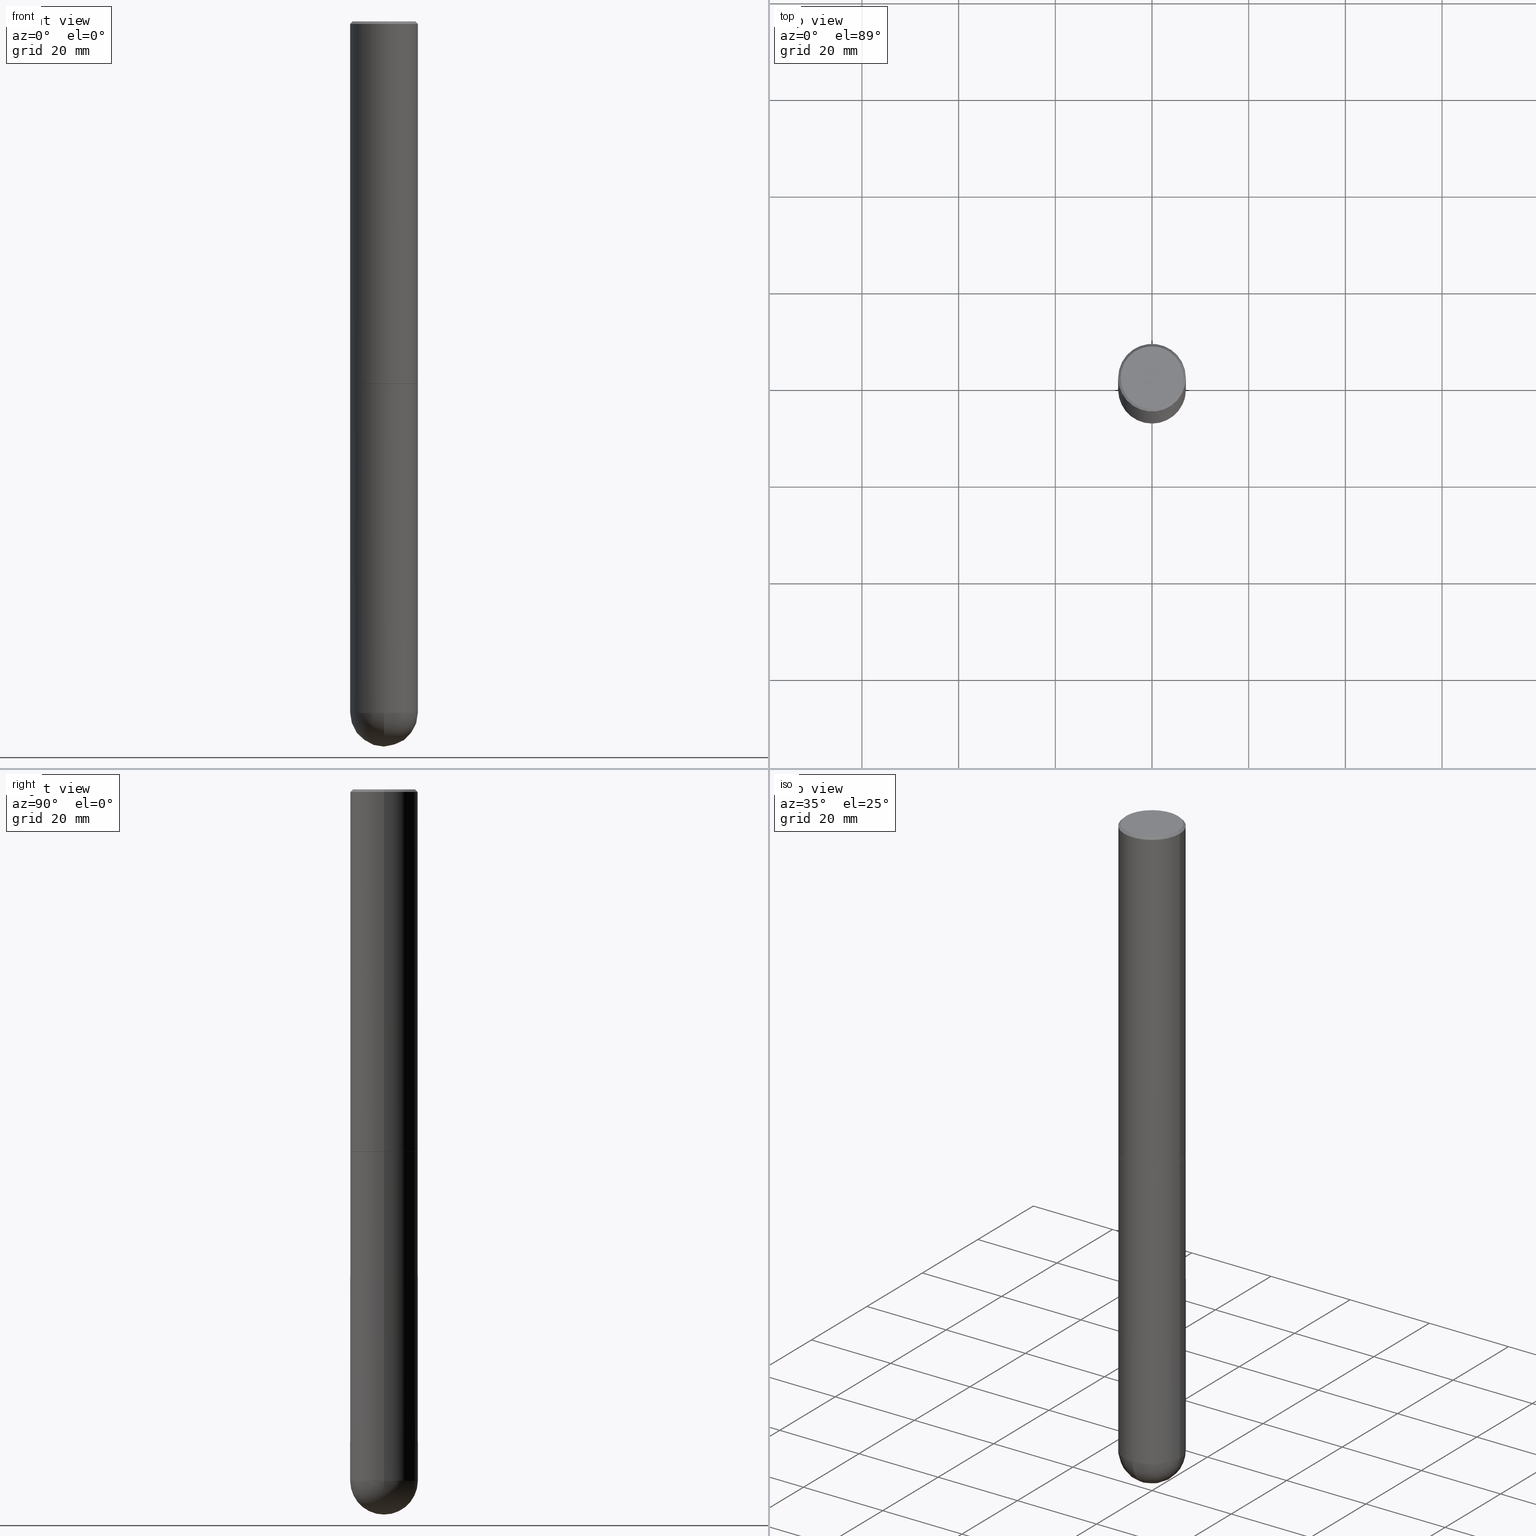
[diagram: canonical four-view strip — front | top / right | iso, engineering-drawing reading convention]
A machine part, canonical four-view strip (front | top / right | iso — engineering-drawing reading convention). The complete STEP part file that produces these views, byte-faithful:
ISO-10303-21;
HEADER;
FILE_DESCRIPTION (( 'STEP AP203' ),
    '1' );
FILE_NAME ('43556.STEP',
    '2024-04-10T11:44:17',
    ( '' ),
    ( '' ),
    'SwSTEP 2.0',
    'SolidWorks 2023',
    '' );
FILE_SCHEMA (( 'CONFIG_CONTROL_DESIGN' ));
ENDSEC;

DATA;
#1 = ORIENTED_EDGE ( 'NONE', *, *, #289, .F. ) ;
#2 = PERSON_AND_ORGANIZATION ( #265, #60 ) ;
#3 = ADVANCED_FACE ( 'NONE', ( #37 ), #167, .F. ) ;
#4 = CYLINDRICAL_SURFACE ( 'NONE', #80, 0.2756000000000002337 ) ;
#5 = CIRCLE ( 'NONE', #364, 0.2756000000000000116 ) ;
#6 = AXIS2_PLACEMENT_3D ( 'NONE', #361, #239, #143 ) ;
#7 = SPHERICAL_SURFACE ( 'NONE', #252, 0.2756000000000000671 ) ;
#8 = CARTESIAN_POINT ( 'NONE',  ( 7.218290275216666916E-29, -1.030580546786331359E-14, -2.951700000000000212 ) ) ;
#9 = FACE_OUTER_BOUND ( 'NONE', #156, .T. ) ;
#10 = CARTESIAN_POINT ( 'NONE',  ( -1.958255779754700116E-15, -0.2756000000000199956, -5.629899999999999238 ) ) ;
#11 = DIRECTION ( 'NONE',  ( -2.445468806185136597E-29, 3.491481338843145583E-15, 1.000000000000000000 ) ) ;
#12 = EDGE_CURVE ( 'NONE', #248, #194, #258, .T. ) ;
#13 = CYLINDRICAL_SURFACE ( 'NONE', #69, 0.2756000000000002337 ) ;
#14 = DIRECTION ( 'NONE',  ( -2.445468806185136597E-29, 3.491481338843145583E-15, 1.000000000000000000 ) ) ;
#15 = CARTESIAN_POINT ( 'NONE',  ( -0.2746000000000000107, -8.358146596804921801E-15, -2.952700000000000546 ) ) ;
#16 = AXIS2_PLACEMENT_3D ( 'NONE', #255, #389, #103 ) ;
#17 = DIRECTION ( 'NONE',  ( -2.445468806185136597E-29, 3.491481338843145583E-15, 1.000000000000000000 ) ) ;
#18 = DIRECTION ( 'NONE',  ( 6.982962677686265922E-15, 1.000000000000000000, -3.964946289788479319E-15 ) ) ;
#19 = CIRCLE ( 'NONE', #391, 0.2556000000000000494 ) ;
#20 = ORIENTED_EDGE ( 'NONE', *, *, #283, .F. ) ;
#21 =( NAMED_UNIT ( * ) SI_UNIT ( $, .STERADIAN. ) SOLID_ANGLE_UNIT ( ) );
#22 = DIRECTION ( 'NONE',  ( 1.000000000000000000, -6.982962677686264344E-15, 0.000000000000000000 ) ) ;
#23 = ORIENTED_EDGE ( 'NONE', *, *, #351, .T. ) ;
#24 = CALENDAR_DATE ( 2024, 10, 4 ) ;
#25 = ORIENTED_EDGE ( 'NONE', *, *, #79, .T. ) ;
#26 = PERSON_AND_ORGANIZATION_ROLE ( 'creator' ) ;
#27 = ORIENTED_EDGE ( 'NONE', *, *, #87, .T. ) ;
#28 = ADVANCED_BREP_SHAPE_REPRESENTATION ( '43556', ( #291, #305, #360 ), #135 ) ;
#29 = APPROVAL_STATUS ( 'not_yet_approved' ) ;
#30 = VERTEX_POINT ( 'NONE', #10 ) ;
#31 = VERTEX_POINT ( 'NONE', #45 ) ;
#32 = PERSON_AND_ORGANIZATION ( #265, #60 ) ;
#33 = ORIENTED_EDGE ( 'NONE', *, *, #233, .T. ) ;
#34 = CC_DESIGN_PERSON_AND_ORGANIZATION_ASSIGNMENT ( #32, #26, ( #181 ) ) ;
#35 = LINE ( 'NONE', #352, #340 ) ;
#36 = CIRCLE ( 'NONE', #394, 0.2756000000000000671 ) ;
#37 = FACE_OUTER_BOUND ( 'NONE', #66, .T. ) ;
#38 = LOCAL_TIME ( 7, 44, 17.00000000000000000, #226 ) ;
#39 = EDGE_CURVE ( 'NONE', #152, #180, #299, .T. ) ;
#40 = EDGE_CURVE ( 'NONE', #126, #248, #85, .T. ) ;
#41 = CARTESIAN_POINT ( 'NONE',  ( 1.412238044847732931E-28, -2.107624978178599697E-14, -5.905499999999999972 ) ) ;
#42 = DIRECTION ( 'NONE',  ( -2.445468806185136597E-29, 3.491481338843145583E-15, 1.000000000000000000 ) ) ;
#43 = DIRECTION ( 'NONE',  ( 6.982962677686267499E-15, 1.000000000000000000, 0.000000000000000000 ) ) ;
#44 = ORIENTED_EDGE ( 'NONE', *, *, #283, .T. ) ;
#45 = CARTESIAN_POINT ( 'NONE',  ( -0.2756000000000000116, 1.854674887193472050E-15, -0.02000000000000006287 ) ) ;
#46 = FACE_OUTER_BOUND ( 'NONE', #346, .T. ) ;
#47 = ORIENTED_EDGE ( 'NONE', *, *, #393, .F. ) ;
#48 = AXIS2_PLACEMENT_3D ( 'NONE', #185, #311, #22 ) ;
#49 = FACE_OUTER_BOUND ( 'NONE', #240, .T. ) ;
#50 = AXIS2_PLACEMENT_3D ( 'NONE', #8, #133, #256 ) ;
#51 = DIRECTION ( 'NONE',  ( 1.000000000000000000, -6.982962677686262766E-15, 0.000000000000000000 ) ) ;
#52 = CARTESIAN_POINT ( 'NONE',  ( 0.2756000000000004557, -1.223030998183365327E-14, -2.951700000000000212 ) ) ;
#53 = DIRECTION ( 'NONE',  ( 1.000000000000000000, -6.982962677686262766E-15, 0.000000000000000000 ) ) ;
#54 = FACE_OUTER_BOUND ( 'NONE', #383, .T. ) ;
#55 = ADVANCED_FACE ( 'NONE', ( #9 ), #112, .T. ) ;
#56 = MECHANICAL_CONTEXT ( 'NONE', #290, 'mechanical' ) ;
#57 = DIRECTION ( 'NONE',  ( 1.000000000000000000, -6.982962677686267499E-15, 4.876176775795935793E-29 ) ) ;
#58 = VECTOR ( 'NONE', #77, 39.37007874015748143 ) ;
#59 = VERTEX_POINT ( 'NONE', #73 ) ;
#60 = ORGANIZATION ( 'UNSPECIFIED', 'UNSPECIFIED', '' ) ;
#61 = CARTESIAN_POINT ( 'NONE',  ( 0.000000000000000000, 0.000000000000000000, 0.000000000000000000 ) ) ;
#62 = ORIENTED_EDGE ( 'NONE', *, *, #241, .F. ) ;
#63 = COORDINATED_UNIVERSAL_TIME_OFFSET ( 5, 0, .BEHIND. ) ;
#64 = DIRECTION ( 'NONE',  ( -2.445468806185136597E-29, 3.491481338843145583E-15, 1.000000000000000000 ) ) ;
#65 = VERTEX_POINT ( 'NONE', #359 ) ;
#66 = EDGE_LOOP ( 'NONE', ( #25, #197 ) ) ;
#67 = CALENDAR_DATE ( 2024, 10, 4 ) ;
#68 = AXIS2_PLACEMENT_3D ( 'NONE', #301, #42, #263 ) ;
#69 = AXIS2_PLACEMENT_3D ( 'NONE', #145, #107, #303 ) ;
#70 = ORIENTED_EDGE ( 'NONE', *, *, #322, .F. ) ;
#71 = CARTESIAN_POINT ( 'NONE',  ( 0.000000000000000000, 0.000000000000000000, 0.000000000000000000 ) ) ;
#72 = PRODUCT_DEFINITION_SHAPE ( 'NONE', 'NONE',  #181 ) ;
#73 = CARTESIAN_POINT ( 'NONE',  ( 1.924504513970471427E-15, 0.2755999999999801942, -5.629900000000001015 ) ) ;
#74 = DIRECTION ( 'NONE',  ( -0.7071067811865464625, 2.468850131082245622E-15, -0.7071067811865485719 ) ) ;
#75 = AXIS2_PLACEMENT_3D ( 'NONE', #267, #334, #171 ) ;
#76 = ADVANCED_FACE ( 'NONE', ( #81 ), #259, .F. ) ;
#77 = DIRECTION ( 'NONE',  ( -2.445468806185136877E-29, 3.491481338843145188E-15, 1.000000000000000000 ) ) ;
#78 = DIRECTION ( 'NONE',  ( -2.445468806185136597E-29, 3.491481338843145583E-15, 1.000000000000000000 ) ) ;
#79 = EDGE_CURVE ( 'NONE', #65, #219, #97, .T. ) ;
#80 = AXIS2_PLACEMENT_3D ( 'NONE', #71, #411, #200 ) ;
#81 = FACE_OUTER_BOUND ( 'NONE', #343, .T. ) ;
#82 = AXIS2_PLACEMENT_3D ( 'NONE', #247, #275, #84 ) ;
#83 = CC_DESIGN_DATE_AND_TIME_ASSIGNMENT ( #377, #314, ( #181 ) ) ;
#84 = DIRECTION ( 'NONE',  ( -7.105427357601001859E-15, -1.000000000000000000, 0.000000000000000000 ) ) ;
#85 = LINE ( 'NONE', #108, #375 ) ;
#86 = EDGE_LOOP ( 'NONE', ( #310, #321, #47, #348 ) ) ;
#87 = EDGE_CURVE ( 'NONE', #180, #31, #253, .T. ) ;
#88 = APPROVAL_ROLE ( '' ) ;
#89 = CARTESIAN_POINT ( 'NONE',  ( 0.2556000000000000494, -1.857063081596550820E-15, -4.695363739109179444E-17 ) ) ;
#90 = AXIS2_PLACEMENT_3D ( 'NONE', #160, #125, #350 ) ;
#91 = ORIENTED_EDGE ( 'NONE', *, *, #99, .F. ) ;
#92 = APPLICATION_PROTOCOL_DEFINITION ( 'international standard', 'config_control_design', 1994, #290 ) ;
#93 = CARTESIAN_POINT ( 'NONE',  ( 1.148236555768741665E-45, -1.639377487418492057E-31, -4.695363739110452099E-17 ) ) ;
#94 = ORIENTED_EDGE ( 'NONE', *, *, #354, .T. ) ;
#95 = ORIENTED_EDGE ( 'NONE', *, *, #289, .T. ) ;
#96 = CALENDAR_DATE ( 2024, 10, 4 ) ;
#97 = CIRCLE ( 'NONE', #203, 0.2556000000000000494 ) ;
#98 = DIRECTION ( 'NONE',  ( -1.000000000000000000, 6.982962677686265922E-15, -4.876176775795935793E-29 ) ) ;
#99 = EDGE_CURVE ( 'NONE', #31, #194, #102, .T. ) ;
#100 = EDGE_CURVE ( 'NONE', #30, #286, #175, .T. ) ;
#101 = DIRECTION ( 'NONE',  ( 1.000000000000000000, -6.982962677686262766E-15, 0.000000000000000000 ) ) ;
#102 = CIRCLE ( 'NONE', #68, 0.2756000000000000116 ) ;
#103 = DIRECTION ( 'NONE',  ( -1.000000000000000000, 6.982962677686265922E-15, -4.876176775795935793E-29 ) ) ;
#104 = EDGE_CURVE ( 'NONE', #211, #148, #109, .T. ) ;
#105 = DIRECTION ( 'NONE',  ( -2.445468806185136877E-29, 3.491481338843145188E-15, 1.000000000000000000 ) ) ;
#106 = AXIS2_PLACEMENT_3D ( 'NONE', #147, #264, #43 ) ;
#107 = DIRECTION ( 'NONE',  ( -2.445468806185136597E-29, 3.491481338843145583E-15, 1.000000000000000000 ) ) ;
#108 = CARTESIAN_POINT ( 'NONE',  ( 0.2746000000000000107, -1.222681850049480396E-14, -2.952700000000000546 ) ) ;
#109 = LINE ( 'NONE', #324, #407 ) ;
#110 = DIRECTION ( 'NONE',  ( 0.7071067811865837660, -2.468850131082636503E-15, 0.7071067811865112684 ) ) ;
#111 = FACE_OUTER_BOUND ( 'NONE', #199, .T. ) ;
#112 = CONICAL_SURFACE ( 'NONE', #335, 0.2746000000000000107, 0.7853981633974995713 ) ;
#113 = CARTESIAN_POINT ( 'NONE',  ( 4.890937612370288923E-31, -6.982962677686312563E-17, -0.02000000000000006287 ) ) ;
#114 = CARTESIAN_POINT ( 'NONE',  ( 0.000000000000000000, 0.000000000000000000, 0.000000000000000000 ) ) ;
#115 = ORIENTED_EDGE ( 'NONE', *, *, #100, .T. ) ;
#116 = PERSON_AND_ORGANIZATION_ROLE ( 'design_supplier' ) ;
#117 = ORIENTED_EDGE ( 'NONE', *, *, #12, .F. ) ;
#118 = CC_DESIGN_PERSON_AND_ORGANIZATION_ASSIGNMENT ( #124, #284, ( #330 ) ) ;
#119 = APPROVAL_ROLE ( '' ) ;
#120 = DIRECTION ( 'NONE',  ( 0.7071067811865464625, -7.319954787623252890E-15, -0.7071067811865485719 ) ) ;
#121 = CLOSED_SHELL ( 'NONE', ( #202, #333, #400, #76, #163 ) ) ;
#122 = APPROVAL_PERSON_ORGANIZATION ( #318, #157, #129 ) ;
#123 = VERTEX_POINT ( 'NONE', #41 ) ;
#124 = PERSON_AND_ORGANIZATION ( #265, #60 ) ;
#125 = DIRECTION ( 'NONE',  ( -2.445468806185136597E-29, 3.491481338843145583E-15, 1.000000000000000000 ) ) ;
#126 = VERTEX_POINT ( 'NONE', #138 ) ;
#127 = SHAPE_DEFINITION_REPRESENTATION ( #72, #28 ) ;
#128 = ORIENTED_EDGE ( 'NONE', *, *, #39, .T. ) ;
#129 = APPROVAL_ROLE ( '' ) ;
#130 = ADVANCED_FACE ( 'NONE', ( #168 ), #269, .T. ) ;
#131 = CIRCLE ( 'NONE', #48, 0.2756000000000000671 ) ;
#132 = CARTESIAN_POINT ( 'NONE',  ( 1.343662505402781410E-28, -2.013087315769307636E-14, -5.629900000000000126 ) ) ;
#133 = DIRECTION ( 'NONE',  ( -2.445468806185136597E-29, 3.491481338843145583E-15, 1.000000000000000000 ) ) ;
#134 = CONICAL_SURFACE ( 'NONE', #358, 0.2756000000000000116, 0.7853981633974468357 ) ;
#135 =( GEOMETRIC_REPRESENTATION_CONTEXT ( 3 ) GLOBAL_UNCERTAINTY_ASSIGNED_CONTEXT ( ( #395 ) ) GLOBAL_UNIT_ASSIGNED_CONTEXT ( ( #262, #382, #21 ) ) REPRESENTATION_CONTEXT ( 'NONE', 'WORKASPACE' ) );
#136 = DIRECTION ( 'NONE',  ( 1.000000000000000000, -6.982962677686262766E-15, 0.000000000000000000 ) ) ;
#137 = EDGE_CURVE ( 'NONE', #229, #148, #5, .T. ) ;
#138 = CARTESIAN_POINT ( 'NONE',  ( 0.2746000000000000107, -1.222681850049480396E-14, -2.952700000000000546 ) ) ;
#139 = DIRECTION ( 'NONE',  ( -0.7071067811865837660, 7.493145998870485111E-15, 0.7071067811865112684 ) ) ;
#140 = CLOSED_SHELL ( 'NONE', ( #130, #387, #270, #245, #325, #55, #396, #3 ) ) ;
#141 = AXIS2_PLACEMENT_3D ( 'NONE', #300, #177, #18 ) ;
#142 = LENGTH_MEASURE_WITH_UNIT ( LENGTH_MEASURE( 0.02539999999999999897 ), #297 );
#143 = DIRECTION ( 'NONE',  ( 1.000000000000000000, -6.982962677686265922E-15, 4.876176775795935793E-29 ) ) ;
#144 = DIRECTION ( 'NONE',  ( 1.000000000000000000, -6.982962677686265922E-15, 0.000000000000000000 ) ) ;
#145 = CARTESIAN_POINT ( 'NONE',  ( 0.000000000000000000, 0.000000000000000000, 0.000000000000000000 ) ) ;
#146 = DIRECTION ( 'NONE',  ( -2.445468806185136597E-29, 3.491481338843145583E-15, 1.000000000000000000 ) ) ;
#147 = CARTESIAN_POINT ( 'NONE',  ( 1.343662505402781410E-28, -2.013087315769307636E-14, -5.629900000000000126 ) ) ;
#148 = VERTEX_POINT ( 'NONE', #232 ) ;
#149 = ORIENTED_EDGE ( 'NONE', *, *, #40, .F. ) ;
#150 = COORDINATED_UNIVERSAL_TIME_OFFSET ( 5, 0, .BEHIND. ) ;
#151 = CYLINDRICAL_SURFACE ( 'NONE', #277, 0.2756000000000000671 ) ;
#152 = VERTEX_POINT ( 'NONE', #271 ) ;
#153 = ORIENTED_EDGE ( 'NONE', *, *, #322, .T. ) ;
#154 = CALENDAR_DATE ( 2024, 10, 4 ) ;
#155 = CIRCLE ( 'NONE', #106, 0.2756000000000000671 ) ;
#156 = EDGE_LOOP ( 'NONE', ( #312, #161, #223, #225 ) ) ;
#157 = APPROVAL ( #195, 'UNSPECIFIED' ) ;
#158 = DIRECTION ( 'NONE',  ( 0.000000000000000000, 0.000000000000000000, 1.000000000000000000 ) ) ;
#159 = PERSON_AND_ORGANIZATION_ROLE ( 'design_owner' ) ;
#160 = CARTESIAN_POINT ( 'NONE',  ( 4.890937612370288923E-31, -6.982962677686312563E-17, -0.02000000000000006287 ) ) ;
#161 = ORIENTED_EDGE ( 'NONE', *, *, #367, .T. ) ;
#162 = EDGE_LOOP ( 'NONE', ( #332, #220, #274, #276 ) ) ;
#163 = ADVANCED_FACE ( 'NONE', ( #54 ), #151, .T. ) ;
#164 = VECTOR ( 'NONE', #105, 39.37007874015748143 ) ;
#165 = CIRCLE ( 'NONE', #50, 0.2756000000000004557 ) ;
#166 = DIRECTION ( 'NONE',  ( -1.000000000000000000, 6.982962677686265922E-15, -4.883557194083112901E-29 ) ) ;
#167 = PLANE ( 'NONE',  #16 ) ;
#168 = FACE_OUTER_BOUND ( 'NONE', #250, .T. ) ;
#169 = CONICAL_SURFACE ( 'NONE', #399, 0.2756000000000000116, 0.7853981633974468357 ) ;
#170 = APPROVAL_PERSON_ORGANIZATION ( #2, #384, #88 ) ;
#171 = DIRECTION ( 'NONE',  ( 1.000000000000000000, -6.982962677686264344E-15, 0.000000000000000000 ) ) ;
#172 = DIRECTION ( 'NONE',  ( 2.438088387897960049E-29, -3.491481338843145188E-15, -1.000000000000000000 ) ) ;
#173 = EDGE_CURVE ( 'NONE', #123, #30, #182, .T. ) ;
#174 = CARTESIAN_POINT ( 'NONE',  ( 1.148236555768741665E-45, -1.639377487418492057E-31, -4.695363739110452099E-17 ) ) ;
#175 = CIRCLE ( 'NONE', #196, 0.2756000000000000671 ) ;
#176 = CC_DESIGN_APPROVAL ( #371, ( #330 ) ) ;
#177 = DIRECTION ( 'NONE',  ( -1.000000000000000000, 6.982962677686265922E-15, -4.883557194083112901E-29 ) ) ;
#178 = FACE_OUTER_BOUND ( 'NONE', #374, .T. ) ;
#179 = PLANE ( 'NONE',  #6 ) ;
#180 = VERTEX_POINT ( 'NONE', #222 ) ;
#181 = PRODUCT_DEFINITION ( 'UNKNOWN', '', #330, #353 ) ;
#182 = CIRCLE ( 'NONE', #82, 0.2756000000000000671 ) ;
#183 = APPROVAL_DATE_TIME ( #191, #157 ) ;
#184 = CIRCLE ( 'NONE', #376, 0.2746000000000000107 ) ;
#185 = CARTESIAN_POINT ( 'NONE',  ( 1.376774483194169922E-28, -1.965669078955302449E-14, -5.629900000000000126 ) ) ;
#186 = EDGE_LOOP ( 'NONE', ( #193, #344, #381, #91 ) ) ;
#187 = EDGE_CURVE ( 'NONE', #286, #59, #131, .T. ) ;
#188 = LINE ( 'NONE', #313, #237 ) ;
#189 = ORIENTED_EDGE ( 'NONE', *, *, #213, .T. ) ;
#190 = ORIENTED_EDGE ( 'NONE', *, *, #241, .T. ) ;
#191 = DATE_AND_TIME ( #154, #356 ) ;
#192 = CARTESIAN_POINT ( 'NONE',  ( 7.218290275216666916E-29, -1.030580546786331359E-14, -2.951700000000000212 ) ) ;
#193 = ORIENTED_EDGE ( 'NONE', *, *, #87, .F. ) ;
#194 = VERTEX_POINT ( 'NONE', #218 ) ;
#195 = APPROVAL_STATUS ( 'not_yet_approved' ) ;
#196 = AXIS2_PLACEMENT_3D ( 'NONE', #397, #201, #257 ) ;
#197 = ORIENTED_EDGE ( 'NONE', *, *, #207, .T. ) ;
#198 = LINE ( 'NONE', #320, #385 ) ;
#199 = EDGE_LOOP ( 'NONE', ( #339, #370, #23, #406 ) ) ;
#200 = DIRECTION ( 'NONE',  ( 1.000000000000000000, -6.982962677686267499E-15, 4.876176775795935793E-29 ) ) ;
#201 = DIRECTION ( 'NONE',  ( -2.445468806185136597E-29, 3.491481338843145583E-15, 1.000000000000000000 ) ) ;
#202 = ADVANCED_FACE ( 'NONE', ( #178 ), #273, .T. ) ;
#203 = AXIS2_PLACEMENT_3D ( 'NONE', #174, #14, #304 ) ;
#204 = LOCAL_TIME ( 7, 44, 17.00000000000000000, #251 ) ;
#205 = CARTESIAN_POINT ( 'NONE',  ( 1.924504513970407529E-15, 0.2755999999999896866, -2.952700000000000990 ) ) ;
#206 = ORIENTED_EDGE ( 'NONE', *, *, #351, .F. ) ;
#207 = EDGE_CURVE ( 'NONE', #219, #65, #19, .T. ) ;
#208 = DIRECTION ( 'NONE',  ( -2.445468806185136597E-29, 3.491481338843145583E-15, 1.000000000000000000 ) ) ;
#209 = AXIS2_PLACEMENT_3D ( 'NONE', #192, #17, #315 ) ;
#210 = DIRECTION ( 'NONE',  ( 2.445468806185136597E-29, -3.491481338843145583E-15, -1.000000000000000000 ) ) ;
#211 = VERTEX_POINT ( 'NONE', #243 ) ;
#212 = DIRECTION ( 'NONE',  ( -1.000000000000000000, 6.982962677686267499E-15, 0.000000000000000000 ) ) ;
#213 = EDGE_CURVE ( 'NONE', #59, #211, #36, .T. ) ;
#214 = PERSON_AND_ORGANIZATION ( #265, #60 ) ;
#215 = CIRCLE ( 'NONE', #209, 0.2756000000000004557 ) ;
#216 = CC_DESIGN_SECURITY_CLASSIFICATION ( #327, ( #330 ) ) ;
#217 = APPROVAL_STATUS ( 'not_yet_approved' ) ;
#218 = CARTESIAN_POINT ( 'NONE',  ( 0.2756000000000000116, -1.960582874962697406E-15, -0.02000000000000006287 ) ) ;
#219 = VERTEX_POINT ( 'NONE', #89 ) ;
#220 = ORIENTED_EDGE ( 'NONE', *, *, #409, .T. ) ;
#221 = DIRECTION ( 'NONE',  ( 1.000000000000000000, 0.000000000000000000, 0.000000000000000000 ) ) ;
#222 = CARTESIAN_POINT ( 'NONE',  ( -0.2756000000000004002, -3.229561767565246331E-15, -2.951700000000000212 ) ) ;
#223 = ORIENTED_EDGE ( 'NONE', *, *, #40, .T. ) ;
#224 = APPLICATION_PROTOCOL_DEFINITION ( 'international standard', 'config_control_design', 1994, #266 ) ;
#225 = ORIENTED_EDGE ( 'NONE', *, *, #236, .F. ) ;
#226 = COORDINATED_UNIVERSAL_TIME_OFFSET ( 5, 0, .BEHIND. ) ;
#227 = CARTESIAN_POINT ( 'NONE',  ( 0.2756000000000000671, -1.690749838334792865E-14, -5.629900000000000126 ) ) ;
#228 = CIRCLE ( 'NONE', #288, 0.2746000000000000107 ) ;
#229 = VERTEX_POINT ( 'NONE', #342 ) ;
#230 = ORIENTED_EDGE ( 'NONE', *, *, #354, .F. ) ;
#231 = CARTESIAN_POINT ( 'NONE',  ( 0.2756000000000002337, -1.924504513970336926E-15, 1.343874319409361109E-29 ) ) ;
#232 = CARTESIAN_POINT ( 'NONE',  ( -0.2756000000000000116, -1.302473808962275237E-14, -2.952700000000000102 ) ) ;
#233 = EDGE_CURVE ( 'NONE', #219, #194, #188, .T. ) ;
#234 = AXIS2_PLACEMENT_3D ( 'NONE', #378, #146, #144 ) ;
#235 = PRODUCT ( '43556', '43556', '', ( #56 ) ) ;
#236 = EDGE_CURVE ( 'NONE', #180, #248, #215, .T. ) ;
#237 = VECTOR ( 'NONE', #120, 39.37007874015748143 ) ;
#238 = DIRECTION ( 'NONE',  ( -2.445468806185136597E-29, 3.491481338843145583E-15, 1.000000000000000000 ) ) ;
#239 = DIRECTION ( 'NONE',  ( -2.438088387897960049E-29, 3.491481338843145188E-15, 1.000000000000000000 ) ) ;
#240 = EDGE_LOOP ( 'NONE', ( #20, #403 ) ) ;
#241 = EDGE_CURVE ( 'NONE', #148, #229, #317, .T. ) ;
#242 = SECURITY_CLASSIFICATION_LEVEL ( 'unclassified' ) ;
#243 = CARTESIAN_POINT ( 'NONE',  ( -0.2756000000000000671, -1.302473808962275553E-14, -5.629900000000000126 ) ) ;
#244 = ORIENTED_EDGE ( 'NONE', *, *, #187, .T. ) ;
#245 = ADVANCED_FACE ( 'NONE', ( #111 ), #134, .T. ) ;
#246 = CC_DESIGN_PERSON_AND_ORGANIZATION_ASSIGNMENT ( #214, #159, ( #235 ) ) ;
#247 = CARTESIAN_POINT ( 'NONE',  ( 1.343662505402781410E-28, -2.013087315769307636E-14, -5.629900000000000126 ) ) ;
#248 = VERTEX_POINT ( 'NONE', #52 ) ;
#249 = COORDINATED_UNIVERSAL_TIME_OFFSET ( 5, 0, .BEHIND. ) ;
#250 = EDGE_LOOP ( 'NONE', ( #44, #128, #230, #149 ) ) ;
#251 = COORDINATED_UNIVERSAL_TIME_OFFSET ( 5, 0, .BEHIND. ) ;
#252 = AXIS2_PLACEMENT_3D ( 'NONE', #132, #166, #254 ) ;
#253 = LINE ( 'NONE', #388, #164 ) ;
#254 = DIRECTION ( 'NONE',  ( 6.982962677686265922E-15, 1.000000000000000000, -3.964946289788479319E-15 ) ) ;
#255 = CARTESIAN_POINT ( 'NONE',  ( 1.784845260416609935E-15, 0.2556000000000000494, -9.158994489038604699E-16 ) ) ;
#256 = DIRECTION ( 'NONE',  ( 1.000000000000000000, -6.982962677686269077E-15, 0.000000000000000000 ) ) ;
#257 = DIRECTION ( 'NONE',  ( 1.000000000000000000, -6.982962677686264344E-15, 0.000000000000000000 ) ) ;
#258 = LINE ( 'NONE', #231, #58 ) ;
#259 = PLANE ( 'NONE',  #355 ) ;
#260 = AXIS2_PLACEMENT_3D ( 'NONE', #362, #11, #136 ) ;
#261 = CC_DESIGN_APPROVAL ( #384, ( #327 ) ) ;
#262 =( CONVERSION_BASED_UNIT ( 'INCH', #142 ) LENGTH_UNIT ( ) NAMED_UNIT ( #298 ) );
#263 = DIRECTION ( 'NONE',  ( 1.000000000000000000, -6.982962677686267499E-15, 0.000000000000000000 ) ) ;
#264 = DIRECTION ( 'NONE',  ( 1.000000000000000000, -6.982962677686265922E-15, 4.883557194083112340E-29 ) ) ;
#265 = PERSON ( 'UNSPECIFIED', 'UNSPECIFIED', 'UNSPECIFIED', ('UNSPECIFIED'), ('UNSPECIFIED'), ('UNSPECIFIED') ) ;
#266 = APPLICATION_CONTEXT ( 'configuration controlled 3d designs of mechanical parts and assemblies' ) ;
#267 = CARTESIAN_POINT ( 'NONE',  ( 1.376774483194169922E-28, -1.965669078955302449E-14, -5.629900000000000126 ) ) ;
#268 = FACE_OUTER_BOUND ( 'NONE', #280, .T. ) ;
#269 = CONICAL_SURFACE ( 'NONE', #260, 0.2746000000000000107, 0.7853981633974995713 ) ;
#270 = ADVANCED_FACE ( 'NONE', ( #268 ), #169, .T. ) ;
#271 = CARTESIAN_POINT ( 'NONE',  ( -0.2746000000000000107, -8.352848142456696244E-15, -2.952700000000000546 ) ) ;
#272 = CALENDAR_DATE ( 2024, 10, 4 ) ;
#273 = CYLINDRICAL_SURFACE ( 'NONE', #293, 0.2756000000000000671 ) ;
#274 = ORIENTED_EDGE ( 'NONE', *, *, #187, .F. ) ;
#275 = DIRECTION ( 'NONE',  ( -1.000000000000000000, 7.105427357601001070E-15, -4.926315508542082329E-29 ) ) ;
#276 = ORIENTED_EDGE ( 'NONE', *, *, #100, .F. ) ;
#277 = AXIS2_PLACEMENT_3D ( 'NONE', #114, #369, #57 ) ;
#278 = DATE_AND_TIME ( #24, #294 ) ;
#279 = DIRECTION ( 'NONE',  ( -2.445468806185136597E-29, 3.491481338843145583E-15, 1.000000000000000000 ) ) ;
#280 = EDGE_LOOP ( 'NONE', ( #287, #33, #95, #206 ) ) ;
#281 = PERSON_AND_ORGANIZATION ( #265, #60 ) ;
#282 = ORIENTED_EDGE ( 'NONE', *, *, #104, .T. ) ;
#283 = EDGE_CURVE ( 'NONE', #126, #152, #228, .T. ) ;
#284 = PERSON_AND_ORGANIZATION_ROLE ( 'creator' ) ;
#285 = DIRECTION ( 'NONE',  ( -2.445468806185136877E-29, 3.491481338843145188E-15, 1.000000000000000000 ) ) ;
#286 = VERTEX_POINT ( 'NONE', #227 ) ;
#287 = ORIENTED_EDGE ( 'NONE', *, *, #207, .F. ) ;
#288 = AXIS2_PLACEMENT_3D ( 'NONE', #309, #279, #101 ) ;
#289 = EDGE_CURVE ( 'NONE', #194, #31, #328, .T. ) ;
#290 = APPLICATION_CONTEXT ( 'configuration controlled 3d designs of mechanical parts and assemblies' ) ;
#291 = MANIFOLD_SOLID_BREP ( 'Body-Move/Copy2[1]', #121 ) ;
#292 = CC_DESIGN_DATE_AND_TIME_ASSIGNMENT ( #349, #372, ( #327 ) ) ;
#293 = AXIS2_PLACEMENT_3D ( 'NONE', #345, #238, #363 ) ;
#294 = LOCAL_TIME ( 7, 44, 17.00000000000000000, #249 ) ;
#295 = DIRECTION ( 'NONE',  ( -2.445468806185136877E-29, 3.491481338843145188E-15, 1.000000000000000000 ) ) ;
#296 = CC_DESIGN_PERSON_AND_ORGANIZATION_ASSIGNMENT ( #281, #116, ( #330 ) ) ;
#297 =( LENGTH_UNIT ( ) NAMED_UNIT ( * ) SI_UNIT ( $, .METRE. ) );
#298 = DIMENSIONAL_EXPONENTS ( 1.000000000000000000, 0.000000000000000000, 0.000000000000000000, 0.000000000000000000, 0.000000000000000000, 0.000000000000000000, 0.000000000000000000 ) ;
#299 = LINE ( 'NONE', #15, #302 ) ;
#300 = CARTESIAN_POINT ( 'NONE',  ( 1.343662505402781410E-28, -2.013087315769307636E-14, -5.629900000000000126 ) ) ;
#301 = CARTESIAN_POINT ( 'NONE',  ( 4.890937612370288923E-31, -6.982962677686312563E-17, -0.02000000000000006287 ) ) ;
#302 = VECTOR ( 'NONE', #139, 39.37007874015748143 ) ;
#303 = DIRECTION ( 'NONE',  ( 1.000000000000000000, -6.982962677686267499E-15, 4.876176775795935793E-29 ) ) ;
#304 = DIRECTION ( 'NONE',  ( 1.000000000000000000, -6.982962677686267499E-15, 4.876943595080612174E-29 ) ) ;
#305 = MANIFOLD_SOLID_BREP ( 'Body-Move/Copy2[2]', #140 ) ;
#306 = CARTESIAN_POINT ( 'NONE',  ( 1.376774483194169922E-28, -1.965669078955302449E-14, -5.629900000000000126 ) ) ;
#307 = PRODUCT_RELATED_PRODUCT_CATEGORY ( 'detail', '', ( #235 ) ) ;
#308 = FACE_OUTER_BOUND ( 'NONE', #162, .T. ) ;
#309 = CARTESIAN_POINT ( 'NONE',  ( 7.220735744022853640E-29, -1.030929694920215659E-14, -2.952700000000000546 ) ) ;
#310 = ORIENTED_EDGE ( 'NONE', *, *, #409, .F. ) ;
#311 = DIRECTION ( 'NONE',  ( -2.445468806185136597E-29, 3.491481338843145583E-15, 1.000000000000000000 ) ) ;
#312 = ORIENTED_EDGE ( 'NONE', *, *, #39, .F. ) ;
#313 = CARTESIAN_POINT ( 'NONE',  ( 0.2756000000000000116, -1.960582874962697406E-15, -0.02000000000000006287 ) ) ;
#314 = DATE_TIME_ROLE ( 'creation_date' ) ;
#315 = DIRECTION ( 'NONE',  ( 1.000000000000000000, -6.982962677686269077E-15, 0.000000000000000000 ) ) ;
#316 = ORIENTED_EDGE ( 'NONE', *, *, #393, .T. ) ;
#317 = CIRCLE ( 'NONE', #234, 0.2756000000000000116 ) ;
#318 = PERSON_AND_ORGANIZATION ( #265, #60 ) ;
#319 = ORIENTED_EDGE ( 'NONE', *, *, #104, .F. ) ;
#320 = CARTESIAN_POINT ( 'NONE',  ( 0.2756000000000000671, -1.924504513970335743E-15, 1.343874319409360268E-29 ) ) ;
#321 = ORIENTED_EDGE ( 'NONE', *, *, #173, .T. ) ;
#322 = EDGE_CURVE ( 'NONE', #286, #229, #198, .T. ) ;
#323 = FACE_OUTER_BOUND ( 'NONE', #86, .T. ) ;
#324 = CARTESIAN_POINT ( 'NONE',  ( -0.2756000000000000671, 1.958255779754836589E-15, -1.355658510874252287E-29 ) ) ;
#325 = ADVANCED_FACE ( 'NONE', ( #326 ), #4, .T. ) ;
#326 = FACE_OUTER_BOUND ( 'NONE', #186, .T. ) ;
#327 = SECURITY_CLASSIFICATION ( '', '', #242 ) ;
#328 = CIRCLE ( 'NONE', #90, 0.2756000000000000116 ) ;
#329 = CARTESIAN_POINT ( 'NONE',  ( 7.220735744022853640E-29, -1.030929694920215659E-14, -2.952700000000000546 ) ) ;
#330 = PRODUCT_DEFINITION_FORMATION_WITH_SPECIFIED_SOURCE ( 'ANY', '', #235, .NOT_KNOWN. ) ;
#331 = DIRECTION ( 'NONE',  ( -2.445468806185136597E-29, 3.491481338843145583E-15, 1.000000000000000000 ) ) ;
#332 = ORIENTED_EDGE ( 'NONE', *, *, #173, .F. ) ;
#333 = ADVANCED_FACE ( 'NONE', ( #323 ), #7, .T. ) ;
#334 = DIRECTION ( 'NONE',  ( -2.445468806185136597E-29, 3.491481338843145583E-15, 1.000000000000000000 ) ) ;
#335 = AXIS2_PLACEMENT_3D ( 'NONE', #329, #331, #51 ) ;
#336 = CC_DESIGN_APPROVAL ( #157, ( #181 ) ) ;
#337 = DIRECTION ( 'NONE',  ( -1.000000000000000000, 6.982962677686267499E-15, 0.000000000000000000 ) ) ;
#338 = PERSON_AND_ORGANIZATION ( #265, #60 ) ;
#339 = ORIENTED_EDGE ( 'NONE', *, *, #233, .F. ) ;
#340 = VECTOR ( 'NONE', #74, 39.37007874015748143 ) ;
#341 = CIRCLE ( 'NONE', #75, 0.2756000000000000671 ) ;
#342 = CARTESIAN_POINT ( 'NONE',  ( 0.2756000000000000116, -1.223380146317248997E-14, -2.952700000000000102 ) ) ;
#343 = EDGE_LOOP ( 'NONE', ( #379, #190 ) ) ;
#344 = ORIENTED_EDGE ( 'NONE', *, *, #236, .T. ) ;
#345 = CARTESIAN_POINT ( 'NONE',  ( 0.000000000000000000, 0.000000000000000000, 0.000000000000000000 ) ) ;
#346 = EDGE_LOOP ( 'NONE', ( #94, #27, #1, #117 ) ) ;
#347 = PERSON_AND_ORGANIZATION_ROLE ( 'classification_officer' ) ;
#348 = ORIENTED_EDGE ( 'NONE', *, *, #213, .F. ) ;
#349 = DATE_AND_TIME ( #67, #38 ) ;
#350 = DIRECTION ( 'NONE',  ( 1.000000000000000000, -6.982962677686267499E-15, 0.000000000000000000 ) ) ;
#351 = EDGE_CURVE ( 'NONE', #65, #31, #35, .T. ) ;
#352 = CARTESIAN_POINT ( 'NONE',  ( -0.2756000000000000116, 1.854674887193472050E-15, -0.02000000000000006287 ) ) ;
#353 = DESIGN_CONTEXT ( 'detailed design', #266, 'design' ) ;
#354 = EDGE_CURVE ( 'NONE', #248, #180, #165, .T. ) ;
#355 = AXIS2_PLACEMENT_3D ( 'NONE', #205, #172, #98 ) ;
#356 = LOCAL_TIME ( 7, 44, 17.00000000000000000, #63 ) ;
#357 = CARTESIAN_POINT ( 'NONE',  ( 7.220735744022852519E-29, -1.030929694920215502E-14, -2.952700000000000102 ) ) ;
#358 = AXIS2_PLACEMENT_3D ( 'NONE', #398, #210, #337 ) ;
#359 = CARTESIAN_POINT ( 'NONE',  ( -0.2556000000000000494, 1.819760073805041190E-15, -4.695363739111712427E-17 ) ) ;
#360 = AXIS2_PLACEMENT_3D ( 'NONE', #61, #158, #221 ) ;
#361 = CARTESIAN_POINT ( 'NONE',  ( 7.220735744022853640E-29, -1.030929694920215659E-14, -2.952700000000000546 ) ) ;
#362 = CARTESIAN_POINT ( 'NONE',  ( 7.220735744022853640E-29, -1.030929694920215659E-14, -2.952700000000000546 ) ) ;
#363 = DIRECTION ( 'NONE',  ( 1.000000000000000000, -6.982962677686267499E-15, 4.876176775795935793E-29 ) ) ;
#364 = AXIS2_PLACEMENT_3D ( 'NONE', #357, #78, #392 ) ;
#365 = CC_DESIGN_PERSON_AND_ORGANIZATION_ASSIGNMENT ( #380, #347, ( #327 ) ) ;
#366 = DIRECTION ( 'NONE',  ( 2.445468806185136597E-29, -3.491481338843145583E-15, -1.000000000000000000 ) ) ;
#367 = EDGE_CURVE ( 'NONE', #152, #126, #184, .T. ) ;
#368 = SPHERICAL_SURFACE ( 'NONE', #141, 0.2756000000000000671 ) ;
#369 = DIRECTION ( 'NONE',  ( -2.445468806185136597E-29, 3.491481338843145583E-15, 1.000000000000000000 ) ) ;
#370 = ORIENTED_EDGE ( 'NONE', *, *, #79, .F. ) ;
#371 = APPROVAL ( #217, 'UNSPECIFIED' ) ;
#372 = DATE_TIME_ROLE ( 'classification_date' ) ;
#373 = DIRECTION ( 'NONE',  ( -2.445468806185136597E-29, 3.491481338843145583E-15, 1.000000000000000000 ) ) ;
#374 = EDGE_LOOP ( 'NONE', ( #189, #282, #401, #70, #244 ) ) ;
#375 = VECTOR ( 'NONE', #110, 39.37007874015748143 ) ;
#376 = AXIS2_PLACEMENT_3D ( 'NONE', #390, #208, #53 ) ;
#377 = DATE_AND_TIME ( #272, #204 ) ;
#378 = CARTESIAN_POINT ( 'NONE',  ( 7.220735744022852519E-29, -1.030929694920215502E-14, -2.952700000000000102 ) ) ;
#379 = ORIENTED_EDGE ( 'NONE', *, *, #137, .T. ) ;
#380 = PERSON_AND_ORGANIZATION ( #265, #60 ) ;
#381 = ORIENTED_EDGE ( 'NONE', *, *, #12, .T. ) ;
#382 =( NAMED_UNIT ( * ) PLANE_ANGLE_UNIT ( ) SI_UNIT ( $, .RADIAN. ) );
#383 = EDGE_LOOP ( 'NONE', ( #319, #316, #115, #153, #62 ) ) ;
#384 = APPROVAL ( #29, 'UNSPECIFIED' ) ;
#385 = VECTOR ( 'NONE', #285, 39.37007874015748143 ) ;
#386 = APPROVAL_PERSON_ORGANIZATION ( #338, #371, #119 ) ;
#387 = ADVANCED_FACE ( 'NONE', ( #46 ), #13, .T. ) ;
#388 = CARTESIAN_POINT ( 'NONE',  ( -0.2756000000000002337, 1.958255779754837773E-15, -1.355658510874253128E-29 ) ) ;
#389 = DIRECTION ( 'NONE',  ( 2.438088387897960049E-29, -3.491481338843145188E-15, -1.000000000000000000 ) ) ;
#390 = CARTESIAN_POINT ( 'NONE',  ( 7.220735744022853640E-29, -1.030929694920215659E-14, -2.952700000000000546 ) ) ;
#391 = AXIS2_PLACEMENT_3D ( 'NONE', #93, #64, #402 ) ;
#392 = DIRECTION ( 'NONE',  ( 1.000000000000000000, -6.982962677686265922E-15, 0.000000000000000000 ) ) ;
#393 = EDGE_CURVE ( 'NONE', #211, #30, #341, .T. ) ;
#394 = AXIS2_PLACEMENT_3D ( 'NONE', #306, #373, #405 ) ;
#395 = UNCERTAINTY_MEASURE_WITH_UNIT (LENGTH_MEASURE( 1.000000000000000082E-05 ), #262, 'distance_accuracy_value', 'NONE');
#396 = ADVANCED_FACE ( 'NONE', ( #49 ), #179, .F. ) ;
#397 = CARTESIAN_POINT ( 'NONE',  ( 1.376774483194169922E-28, -1.965669078955302449E-14, -5.629900000000000126 ) ) ;
#398 = CARTESIAN_POINT ( 'NONE',  ( 4.890937612370288923E-31, -6.982962677686312563E-17, -0.02000000000000006287 ) ) ;
#399 = AXIS2_PLACEMENT_3D ( 'NONE', #113, #366, #212 ) ;
#400 = ADVANCED_FACE ( 'NONE', ( #308 ), #368, .T. ) ;
#401 = ORIENTED_EDGE ( 'NONE', *, *, #137, .F. ) ;
#402 = DIRECTION ( 'NONE',  ( 1.000000000000000000, -6.982962677686267499E-15, 4.876943595080612174E-29 ) ) ;
#403 = ORIENTED_EDGE ( 'NONE', *, *, #367, .F. ) ;
#404 = DATE_AND_TIME ( #96, #408 ) ;
#405 = DIRECTION ( 'NONE',  ( 1.000000000000000000, -6.982962677686264344E-15, 0.000000000000000000 ) ) ;
#406 = ORIENTED_EDGE ( 'NONE', *, *, #99, .T. ) ;
#407 = VECTOR ( 'NONE', #295, 39.37007874015748143 ) ;
#408 = LOCAL_TIME ( 7, 44, 17.00000000000000000, #150 ) ;
#409 = EDGE_CURVE ( 'NONE', #123, #59, #155, .T. ) ;
#410 = APPROVAL_DATE_TIME ( #278, #371 ) ;
#411 = DIRECTION ( 'NONE',  ( -2.445468806185136597E-29, 3.491481338843145583E-15, 1.000000000000000000 ) ) ;
#412 = APPROVAL_DATE_TIME ( #404, #384 ) ;
ENDSEC;
END-ISO-10303-21;
